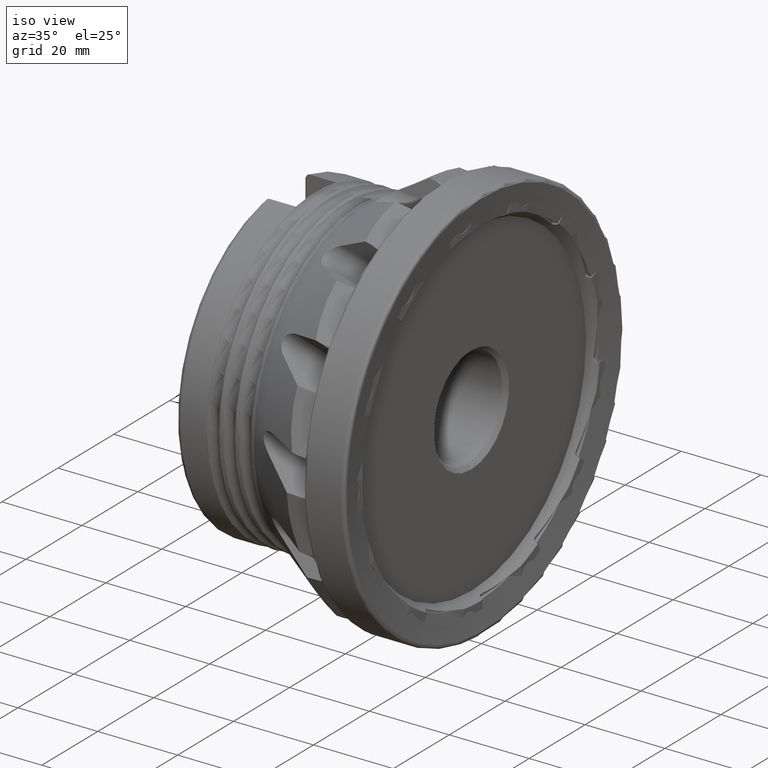
[diagram: clean part render]
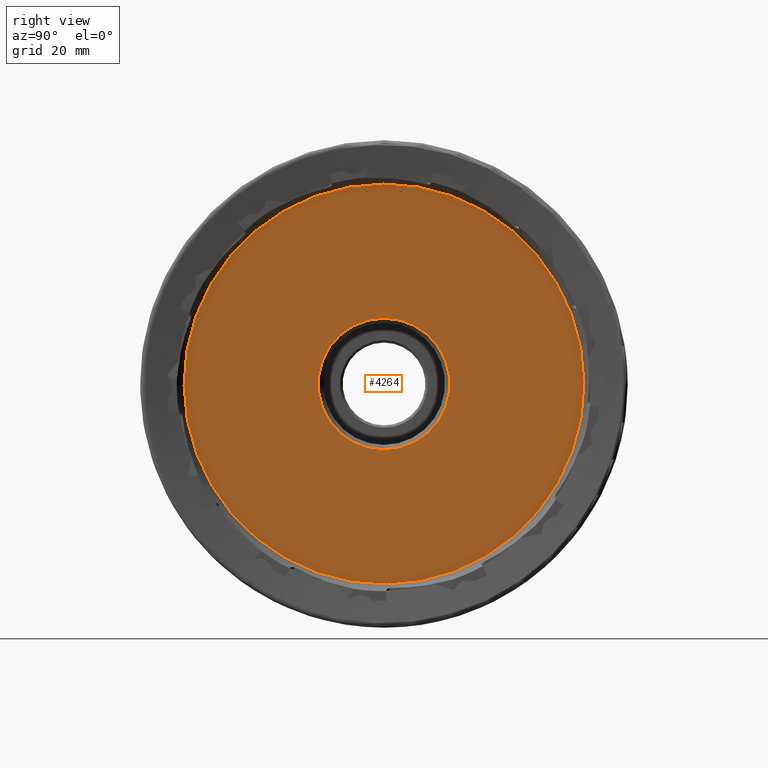
[diagram: tour spotlight — one face highlighted and labeled with its STEP entity id]
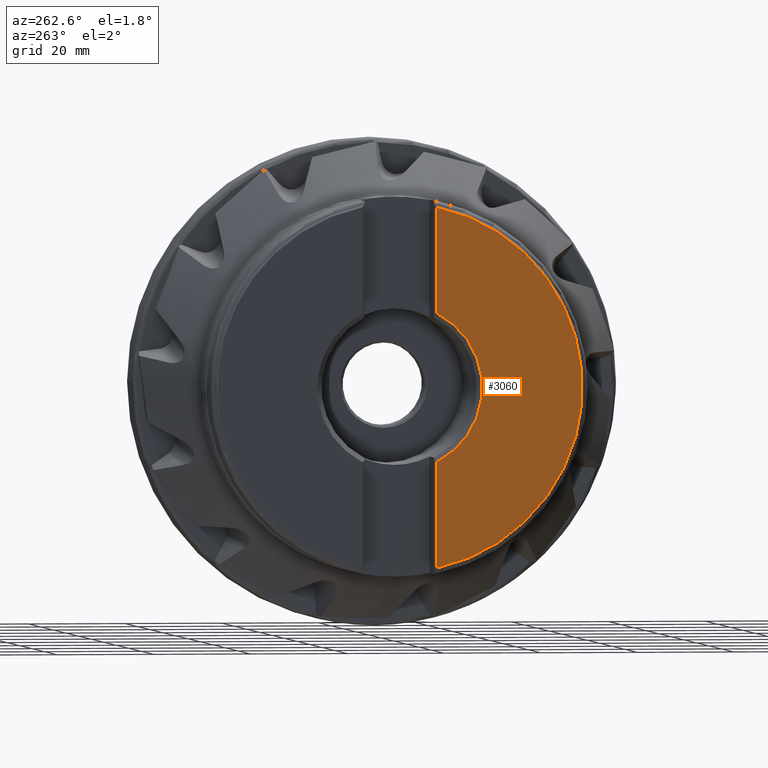
[diagram: tour spotlight — one face highlighted and labeled with its STEP entity id]
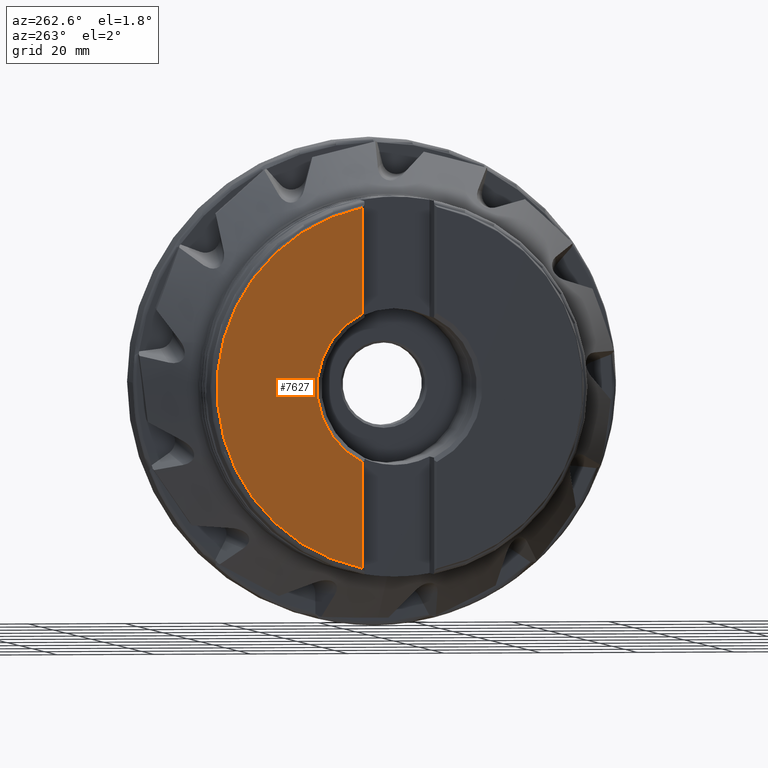
[diagram: tour spotlight — one face highlighted and labeled with its STEP entity id]
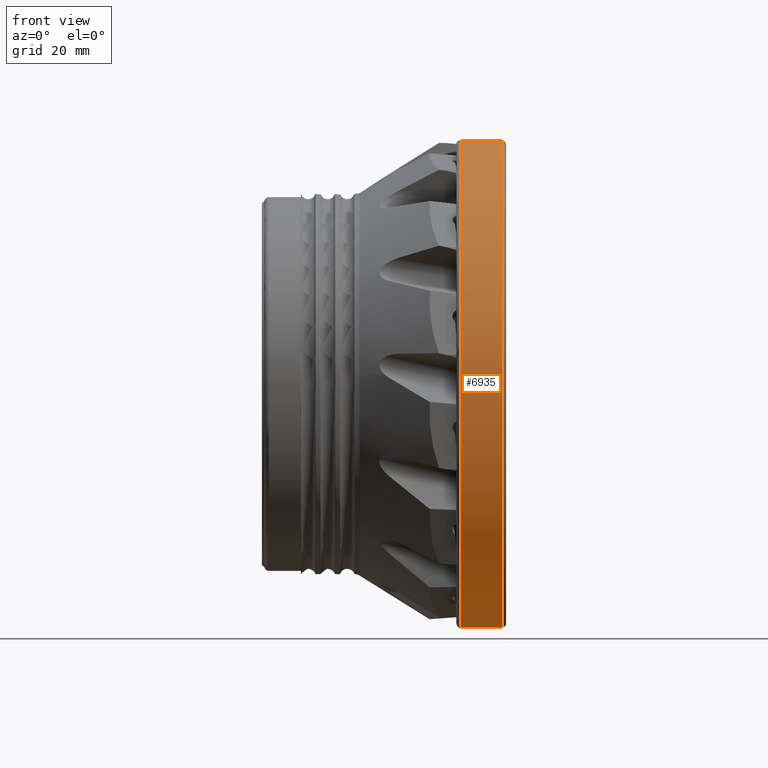
[diagram: tour spotlight — one face highlighted and labeled with its STEP entity id]
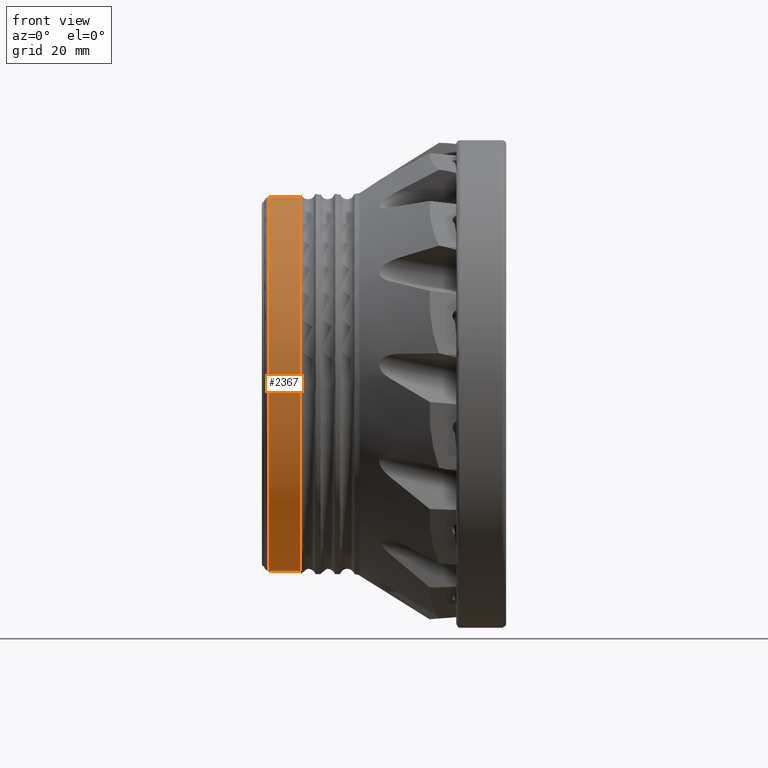
[diagram: tour spotlight — one face highlighted and labeled with its STEP entity id]
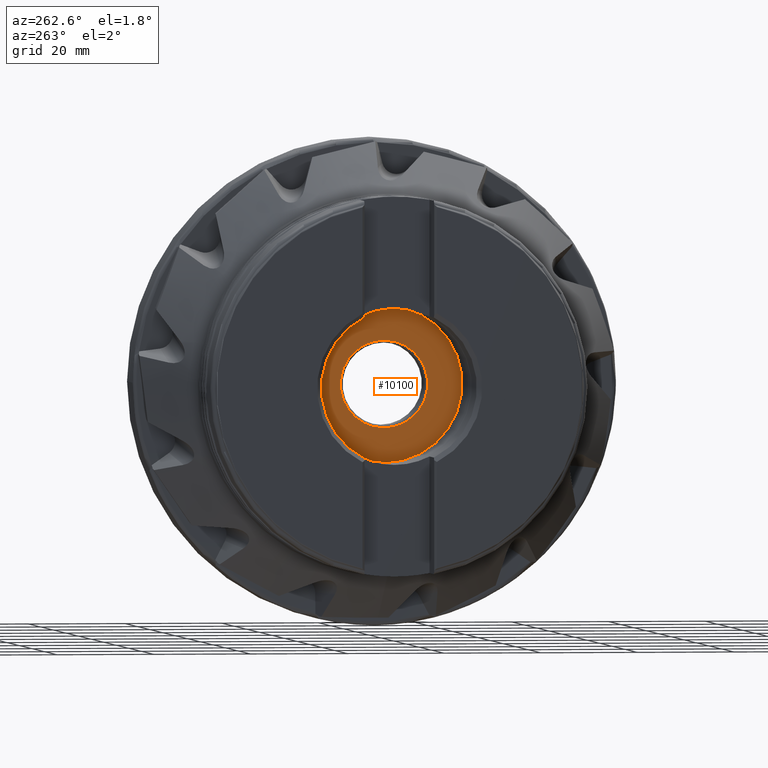
[diagram: tour spotlight — one face highlighted and labeled with its STEP entity id]
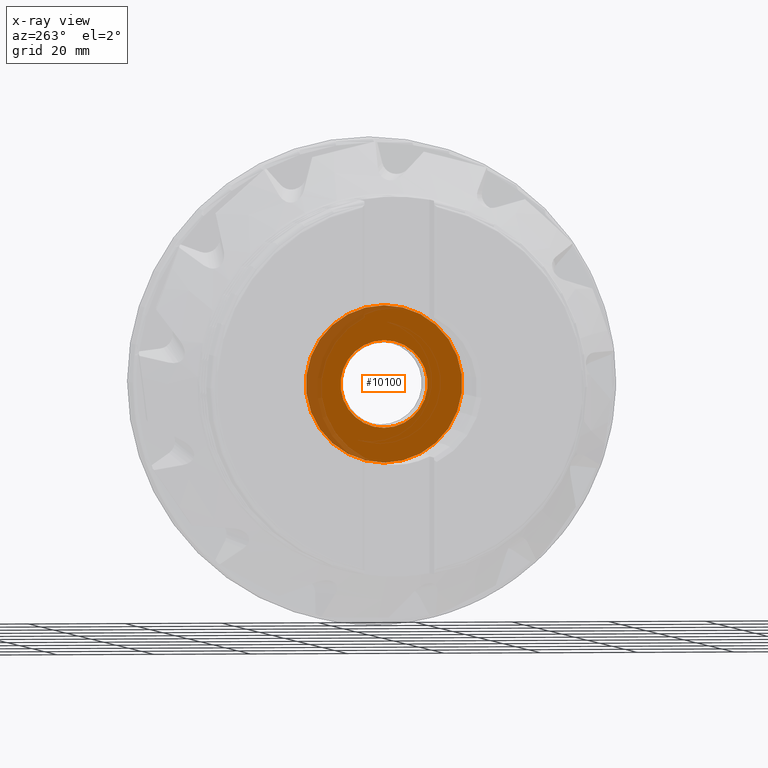
[diagram: x-ray of the same camera — body ghosted, this tour face saturated]
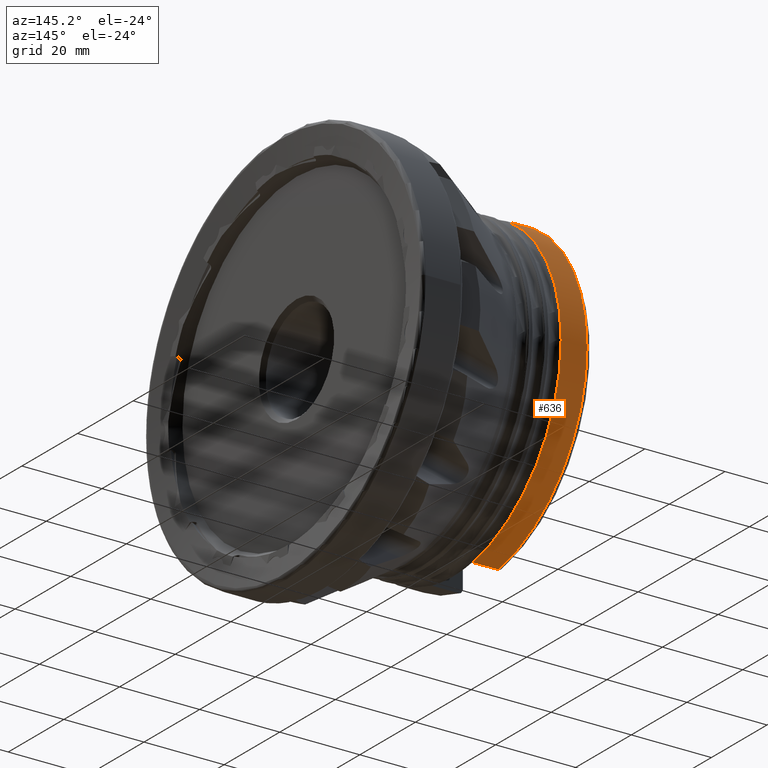
[diagram: tour spotlight — one face highlighted and labeled with its STEP entity id]
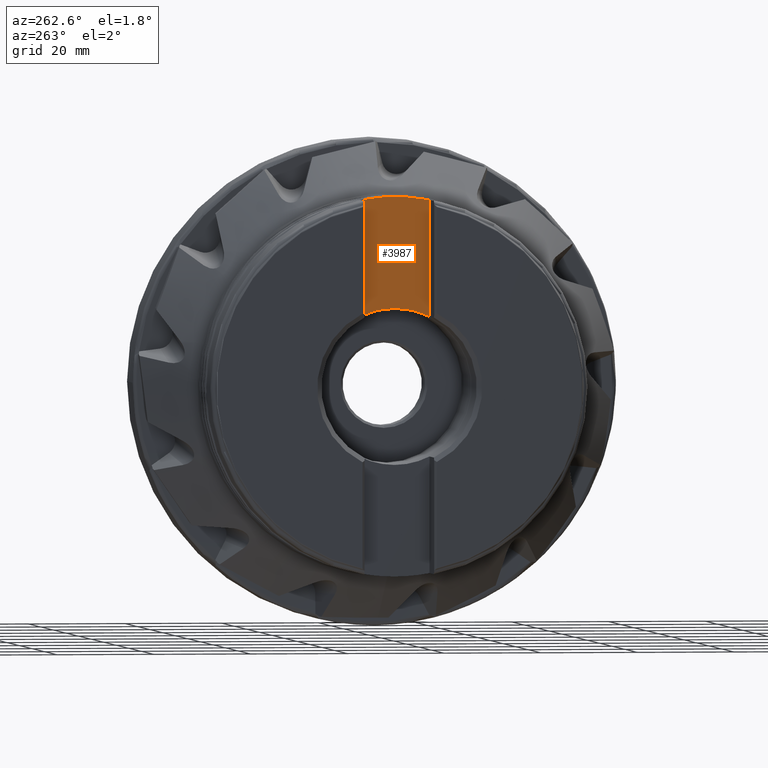
[diagram: tour spotlight — one face highlighted and labeled with its STEP entity id]
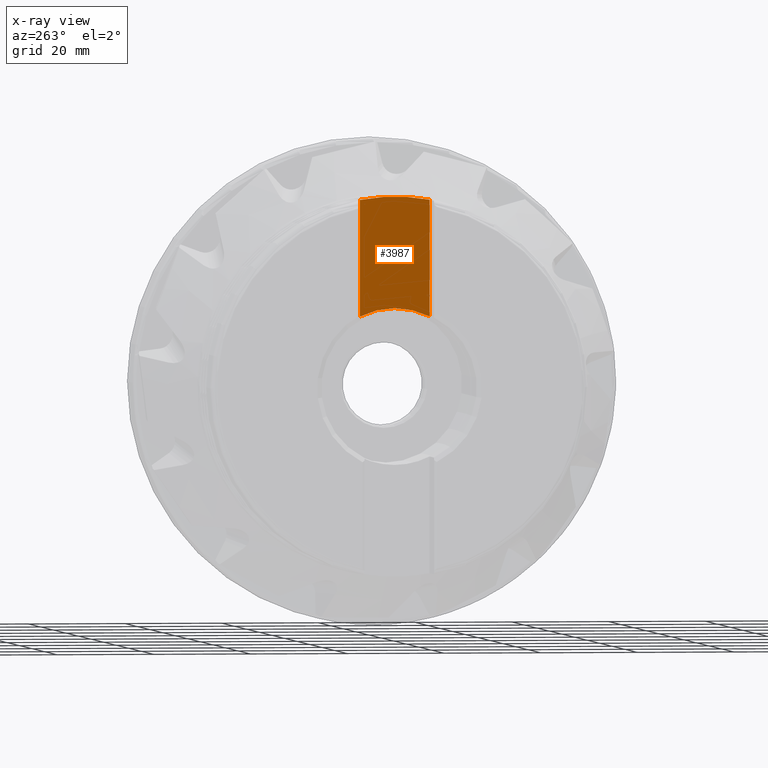
[diagram: x-ray of the same camera — body ghosted, this tour face saturated]
A machine part: a face-by-face anatomy tour. The part has 326 B-rep faces; the first image is the clean iso view, then the 8 largest visible faces are spotlighted one at a time (largest first), each with its STEP entity span.

Face 1 — right view, entity #4264. In plain terms, the highlighted planar face has unit normal (1, 0, 0).
Definition (entity closure, byte-faithful):
#542 = DIRECTION ( 'NONE',  ( 0.0000000000000000000, 0.0000000000000000000, 1.000000000000000000 ) ) ;
#585 = CARTESIAN_POINT ( 'NONE',  ( -2.500000000000001300, 0.0000000000000000000, 0.0000000000000000000 ) ) ;
#660 = EDGE_CURVE ( 'NONE', #1336, #1336, #10934, .T. ) ;
#815 = DIRECTION ( 'NONE',  ( 1.000000000000000000, 0.0000000000000000000, 0.0000000000000000000 ) ) ;
#831 = EDGE_CURVE ( 'NONE', #1180, #1180, #4416, .T. ) ;
#1180 = VERTEX_POINT ( 'NONE', #9191 ) ;
#1332 = EDGE_LOOP ( 'NONE', ( #6541 ) ) ;
#1336 = VERTEX_POINT ( 'NONE', #4300 ) ;
#2149 = AXIS2_PLACEMENT_3D ( 'NONE', #2802, #815, #7789 ) ;
#2802 = CARTESIAN_POINT ( 'NONE',  ( -2.500000000000000000, 41.00000000000000000, 0.0000000000000000000 ) ) ;
#2975 = CARTESIAN_POINT ( 'NONE',  ( -2.500000000000000000, 0.0000000000000000000, 0.0000000000000000000 ) ) ;
#3393 = DIRECTION ( 'NONE',  ( -1.000000000000000000, -0.0000000000000000000, -0.0000000000000000000 ) ) ;
#3403 = DIRECTION ( 'NONE',  ( -1.000000000000000000, -0.0000000000000000000, -0.0000000000000000000 ) ) ;
#4109 = AXIS2_PLACEMENT_3D ( 'NONE', #2975, #3393, #10331 ) ;
#4264 = ADVANCED_FACE ( 'NONE', ( #12310, #5672 ), #6784, .T. ) ;
#4300 = CARTESIAN_POINT ( 'NONE',  ( -2.500000000000000000, 0.0000000000000000000, -13.50000000000001200 ) ) ;
#4416 = CIRCLE ( 'NONE', #12720, 41.00000000000000000 ) ;
#5672 = FACE_OUTER_BOUND ( 'NONE', #1332, .T. ) ;
#6541 = ORIENTED_EDGE ( 'NONE', *, *, #831, .F. ) ;
#6784 = PLANE ( 'NONE',  #2149 ) ;
#6918 = EDGE_LOOP ( 'NONE', ( #10402 ) ) ;
#7789 = DIRECTION ( 'NONE',  ( 0.0000000000000000000, 0.0000000000000000000, -1.000000000000000000 ) ) ;
#9191 = CARTESIAN_POINT ( 'NONE',  ( -2.500000000000001300, 0.0000000000000000000, 41.00000000000000000 ) ) ;
#10331 = DIRECTION ( 'NONE',  ( 0.0000000000000000000, 0.0000000000000000000, -1.000000000000000000 ) ) ;
#10402 = ORIENTED_EDGE ( 'NONE', *, *, #660, .T. ) ;
#10934 = CIRCLE ( 'NONE', #4109, 13.50000000000001200 ) ;
#12310 = FACE_BOUND ( 'NONE', #6918, .T. ) ;
#12720 = AXIS2_PLACEMENT_3D ( 'NONE', #585, #3403, #542 ) ;

Face 2 — auxiliary view, entity #3060. In plain terms, the highlighted planar face has unit normal (-1, 0, 0).
Definition (entity closure, byte-faithful):
#133 = VECTOR ( 'NONE', #1346, 1000.000000000000000 ) ;
#612 = PLANE ( 'NONE',  #1939 ) ;
#1264 = LINE ( 'NONE', #7281, #133 ) ;
#1346 = DIRECTION ( 'NONE',  ( 0.0000000000000000000, 0.0000000000000000000, -1.000000000000000000 ) ) ;
#1559 = VERTEX_POINT ( 'NONE', #11667 ) ;
#1629 = DIRECTION ( 'NONE',  ( 0.0000000000000000000, 0.0000000000000000000, 1.000000000000000000 ) ) ;
#1939 = AXIS2_PLACEMENT_3D ( 'NONE', #10497, #7581, #1629 ) ;
#2258 = ORIENTED_EDGE ( 'NONE', *, *, #2793, .T. ) ;
#2632 = EDGE_CURVE ( 'NONE', #5639, #4954, #3276, .T. ) ;
#2793 = EDGE_CURVE ( 'NONE', #5639, #1559, #1264, .T. ) ;
#3060 = ADVANCED_FACE ( 'NONE', ( #3924 ), #612, .T. ) ;
#3276 = CIRCLE ( 'NONE', #12005, 37.78999999999999900 ) ;
#3304 = AXIS2_PLACEMENT_3D ( 'NONE', #5183, #12106, #6183 ) ;
#3594 = ORIENTED_EDGE ( 'NONE', *, *, #2632, .F. ) ;
#3924 = FACE_OUTER_BOUND ( 'NONE', #12056, .T. ) ;
#4088 = VERTEX_POINT ( 'NONE', #10211 ) ;
#4954 = VERTEX_POINT ( 'NONE', #8383 ) ;
#5183 = CARTESIAN_POINT ( 'NONE',  ( -49.39999999999999900, 0.0000000000000000000, 0.0000000000000000000 ) ) ;
#5639 = VERTEX_POINT ( 'NONE', #8208 ) ;
#5865 = CARTESIAN_POINT ( 'NONE',  ( -49.39999999999999100, -5.484501741648274700E-015, 0.0000000000000000000 ) ) ;
#6183 = DIRECTION ( 'NONE',  ( 0.0000000000000000000, 0.0000000000000000000, 1.000000000000000000 ) ) ;
#6500 = DIRECTION ( 'NONE',  ( 0.0000000000000000000, 0.0000000000000000000, -1.000000000000000000 ) ) ;
#6854 = DIRECTION ( 'NONE',  ( -1.836171977747348100E-016, 1.000000000000000000, 0.0000000000000000000 ) ) ;
#7281 = CARTESIAN_POINT ( 'NONE',  ( -49.39999999999999900, -7.699999999999991300, 15.48275250076675600 ) ) ;
#7581 = DIRECTION ( 'NONE',  ( -1.000000000000000000, 0.0000000000000000000, 0.0000000000000000000 ) ) ;
#7730 = CIRCLE ( 'NONE', #3304, 17.07499999999997800 ) ;
#8208 = CARTESIAN_POINT ( 'NONE',  ( -49.39999999999999100, -7.699999999999991300, 36.99721746293902000 ) ) ;
#8383 = CARTESIAN_POINT ( 'NONE',  ( -49.39999999999999100, -7.699999999999985100, -36.99721746293902700 ) ) ;
#8410 = ORIENTED_EDGE ( 'NONE', *, *, #8964, .T. ) ;
#8451 = CARTESIAN_POINT ( 'NONE',  ( -49.39999999999999900, -7.699999999999991300, -37.09776408356708500 ) ) ;
#8964 = EDGE_CURVE ( 'NONE', #4088, #4954, #11886, .T. ) ;
#10211 = CARTESIAN_POINT ( 'NONE',  ( -49.39999999999999900, -7.699999999999991300, -15.24026328512730700 ) ) ;
#10497 = CARTESIAN_POINT ( 'NONE',  ( -49.39999999999999900, 38.99999999999999300, 0.0000000000000000000 ) ) ;
#10596 = ORIENTED_EDGE ( 'NONE', *, *, #10821, .T. ) ;
#10821 = EDGE_CURVE ( 'NONE', #1559, #4088, #7730, .T. ) ;
#11667 = CARTESIAN_POINT ( 'NONE',  ( -49.39999999999999900, -7.699999999999991300, 15.24026328512730700 ) ) ;
#11886 = LINE ( 'NONE', #8451, #12017 ) ;
#12005 = AXIS2_PLACEMENT_3D ( 'NONE', #5865, #12763, #6854 ) ;
#12017 = VECTOR ( 'NONE', #6500, 1000.000000000000000 ) ;
#12056 = EDGE_LOOP ( 'NONE', ( #10596, #8410, #3594, #2258 ) ) ;
#12106 = DIRECTION ( 'NONE',  ( 1.000000000000000000, -0.0000000000000000000, -0.0000000000000000000 ) ) ;
#12763 = DIRECTION ( 'NONE',  ( 1.000000000000000000, 1.110223024625157000E-016, -0.0000000000000000000 ) ) ;

Face 3 — auxiliary view, entity #7627. In plain terms, the highlighted planar face has unit normal (-1, 0, 0).
Definition (entity closure, byte-faithful):
#422 = AXIS2_PLACEMENT_3D ( 'NONE', #8832, #2912, #9842 ) ;
#476 = CIRCLE ( 'NONE', #422, 37.78999999999999900 ) ;
#869 = VECTOR ( 'NONE', #6298, 1000.000000000000000 ) ;
#1042 = CARTESIAN_POINT ( 'NONE',  ( -49.39999999999999100, 7.699999999999998400, -36.99721746293902000 ) ) ;
#1145 = CARTESIAN_POINT ( 'NONE',  ( -49.39999999999999100, 7.699999999999992200, 36.99721746293902000 ) ) ;
#1168 = EDGE_CURVE ( 'NONE', #3958, #11367, #4794, .T. ) ;
#1698 = AXIS2_PLACEMENT_3D ( 'NONE', #4059, #5076, #11995 ) ;
#1958 = PLANE ( 'NONE',  #1698 ) ;
#2395 = ORIENTED_EDGE ( 'NONE', *, *, #2657, .F. ) ;
#2498 = CARTESIAN_POINT ( 'NONE',  ( -49.39999999999999900, 7.699999999999998400, 37.09776408356702900 ) ) ;
#2657 = EDGE_CURVE ( 'NONE', #3958, #6763, #476, .T. ) ;
#2682 = CARTESIAN_POINT ( 'NONE',  ( -49.39999999999999900, 7.699999999999997500, -15.24026328512730400 ) ) ;
#2841 = ORIENTED_EDGE ( 'NONE', *, *, #9625, .T. ) ;
#2912 = DIRECTION ( 'NONE',  ( 1.000000000000000000, 1.110223024625157000E-016, -0.0000000000000000000 ) ) ;
#3154 = ORIENTED_EDGE ( 'NONE', *, *, #1168, .T. ) ;
#3958 = VERTEX_POINT ( 'NONE', #1042 ) ;
#3976 = VERTEX_POINT ( 'NONE', #10997 ) ;
#4059 = CARTESIAN_POINT ( 'NONE',  ( -49.39999999999999900, 38.99999999999999300, 0.0000000000000000000 ) ) ;
#4794 = LINE ( 'NONE', #7241, #869 ) ;
#5076 = DIRECTION ( 'NONE',  ( -1.000000000000000000, 0.0000000000000000000, 0.0000000000000000000 ) ) ;
#5567 = VECTOR ( 'NONE', #11460, 1000.000000000000000 ) ;
#5663 = CARTESIAN_POINT ( 'NONE',  ( -49.39999999999999900, 0.0000000000000000000, 0.0000000000000000000 ) ) ;
#5866 = LINE ( 'NONE', #2498, #5567 ) ;
#6298 = DIRECTION ( 'NONE',  ( 0.0000000000000000000, -0.0000000000000000000, 1.000000000000000000 ) ) ;
#6651 = DIRECTION ( 'NONE',  ( 0.0000000000000000000, 8.881784197001252300E-016, 1.000000000000000000 ) ) ;
#6763 = VERTEX_POINT ( 'NONE', #1145 ) ;
#7241 = CARTESIAN_POINT ( 'NONE',  ( -49.39999999999999900, 7.699999999999998400, -15.48275250076675900 ) ) ;
#7627 = ADVANCED_FACE ( 'NONE', ( #10324 ), #1958, .T. ) ;
#8545 = CIRCLE ( 'NONE', #10702, 17.07499999999997800 ) ;
#8832 = CARTESIAN_POINT ( 'NONE',  ( -49.39999999999999100, -5.484501741648274700E-015, 0.0000000000000000000 ) ) ;
#8923 = EDGE_LOOP ( 'NONE', ( #11879, #2841, #2395, #3154 ) ) ;
#9625 = EDGE_CURVE ( 'NONE', #3976, #6763, #5866, .T. ) ;
#9842 = DIRECTION ( 'NONE',  ( -1.836171977747348100E-016, 1.000000000000000000, 0.0000000000000000000 ) ) ;
#10111 = EDGE_CURVE ( 'NONE', #11367, #3976, #8545, .T. ) ;
#10324 = FACE_OUTER_BOUND ( 'NONE', #8923, .T. ) ;
#10702 = AXIS2_PLACEMENT_3D ( 'NONE', #5663, #12569, #6651 ) ;
#10997 = CARTESIAN_POINT ( 'NONE',  ( -49.39999999999999900, 7.699999999999998400, 15.24026328512730400 ) ) ;
#11367 = VERTEX_POINT ( 'NONE', #2682 ) ;
#11460 = DIRECTION ( 'NONE',  ( 0.0000000000000000000, -0.0000000000000000000, 1.000000000000000000 ) ) ;
#11879 = ORIENTED_EDGE ( 'NONE', *, *, #10111, .T. ) ;
#11995 = DIRECTION ( 'NONE',  ( 0.0000000000000000000, 0.0000000000000000000, 1.000000000000000000 ) ) ;
#12569 = DIRECTION ( 'NONE',  ( 1.000000000000000000, -0.0000000000000000000, -0.0000000000000000000 ) ) ;

Face 4 — front view, entity #6935. In plain terms, the highlighted cylindrical surface (bore or boss wall) has radius 49.9892 mm, axis along (1, 0, -0).
Definition (entity closure, byte-faithful):
#988 = DIRECTION ( 'NONE',  ( 1.000000000000000000, 1.224983210366505700E-016, -0.0000000000000000000 ) ) ;
#1460 = DIRECTION ( 'NONE',  ( 1.000000000000000000, 1.224983210366505700E-016, -0.0000000000000000000 ) ) ;
#2377 = EDGE_LOOP ( 'NONE', ( #5916 ) ) ;
#2702 = FACE_OUTER_BOUND ( 'NONE', #2377, .T. ) ;
#2903 = AXIS2_PLACEMENT_3D ( 'NONE', #11191, #5254, #12175 ) ;
#3322 = FACE_OUTER_BOUND ( 'NONE', #10427, .T. ) ;
#3465 = CARTESIAN_POINT ( 'NONE',  ( 8.934479604272297600, 0.0000000000000000000, 0.0000000000000000000 ) ) ;
#3514 = DIRECTION ( 'NONE',  ( -1.388077365439003300E-016, 1.000000000000000000, 0.0000000000000000000 ) ) ;
#3536 = VERTEX_POINT ( 'NONE', #12555 ) ;
#4072 = ORIENTED_EDGE ( 'NONE', *, *, #12387, .F. ) ;
#4576 = AXIS2_PLACEMENT_3D ( 'NONE', #6953, #988, #7952 ) ;
#5254 = DIRECTION ( 'NONE',  ( 1.000000000000000000, 1.224983210366505700E-016, -0.0000000000000000000 ) ) ;
#5916 = ORIENTED_EDGE ( 'NONE', *, *, #9886, .T. ) ;
#6935 = ADVANCED_FACE ( 'NONE', ( #3322, #2702 ), #12011, .T. ) ;
#6953 = CARTESIAN_POINT ( 'NONE',  ( -8.729854214491627600, -2.163851235029507000E-015, 0.0000000000000000000 ) ) ;
#7286 = CIRCLE ( 'NONE', #4576, 49.98924466802096600 ) ;
#7952 = DIRECTION ( 'NONE',  ( -1.388077365439003300E-016, 1.000000000000000000, 0.0000000000000000000 ) ) ;
#8739 = AXIS2_PLACEMENT_3D ( 'NONE', #3465, #1460, #3514 ) ;
#9670 = CARTESIAN_POINT ( 'NONE',  ( -0.1249407386134304800, 49.98924466802096600, 0.0000000000000000000 ) ) ;
#9886 = EDGE_CURVE ( 'NONE', #3536, #3536, #7286, .T. ) ;
#10154 = CIRCLE ( 'NONE', #2903, 49.98924466802096600 ) ;
#10427 = EDGE_LOOP ( 'NONE', ( #4072 ) ) ;
#11191 = CARTESIAN_POINT ( 'NONE',  ( -0.1249407386134243600, -1.109763781568778100E-015, 0.0000000000000000000 ) ) ;
#12011 = CYLINDRICAL_SURFACE ( 'NONE', #8739, 49.98924466802096600 ) ;
#12175 = DIRECTION ( 'NONE',  ( -1.225412049176620000E-016, 1.000000000000000000, 0.0000000000000000000 ) ) ;
#12387 = EDGE_CURVE ( 'NONE', #12485, #12485, #10154, .T. ) ;
#12485 = VERTEX_POINT ( 'NONE', #9670 ) ;
#12555 = CARTESIAN_POINT ( 'NONE',  ( -8.729854214491634700, 49.98924466802096600, 0.0000000000000000000 ) ) ;

Face 5 — front view, entity #2367. In plain terms, the highlighted cylindrical surface (partial cylindrical patch) has radius 39 mm, axis along (1, -0, -0).
Definition (entity closure, byte-faithful):
#562 = CYLINDRICAL_SURFACE ( 'NONE', #1370, 38.99999999999999300 ) ;
#599 = ORIENTED_EDGE ( 'NONE', *, *, #8457, .F. ) ;
#1218 = FACE_OUTER_BOUND ( 'NONE', #8944, .T. ) ;
#1282 = DIRECTION ( 'NONE',  ( -1.000000000000000000, -0.0000000000000000000, -0.0000000000000000000 ) ) ;
#1333 = VECTOR ( 'NONE', #7585, 1000.000000000000000 ) ;
#1370 = AXIS2_PLACEMENT_3D ( 'NONE', #7429, #6447, #8391 ) ;
#1454 = CARTESIAN_POINT ( 'NONE',  ( 8.511868235461817200E-016, -7.200000000000000200, 38.32962300884264600 ) ) ;
#1517 = CARTESIAN_POINT ( 'NONE',  ( -47.96233724523590100, -6.942354316154858900E-015, 0.0000000000000000000 ) ) ;
#2367 = ADVANCED_FACE ( 'NONE', ( #1218 ), #562, .T. ) ;
#2465 = DIRECTION ( 'NONE',  ( 1.000000000000000000, -0.0000000000000000000, -0.0000000000000000000 ) ) ;
#2518 = DIRECTION ( 'NONE',  ( -1.779203565104417900E-016, 1.000000000000000000, 0.0000000000000000000 ) ) ;
#4110 = CARTESIAN_POINT ( 'NONE',  ( -41.49059737205869400, -7.200000000000004600, -38.32962300884264600 ) ) ;
#4491 = AXIS2_PLACEMENT_3D ( 'NONE', #1517, #8465, #2518 ) ;
#4530 = ORIENTED_EDGE ( 'NONE', *, *, #12060, .F. ) ;
#4719 = LINE ( 'NONE', #6595, #1333 ) ;
#5168 = CARTESIAN_POINT ( 'NONE',  ( -47.96233724523590800, -7.200000000000000200, -38.32962300884264600 ) ) ;
#6447 = DIRECTION ( 'NONE',  ( 1.000000000000000000, -0.0000000000000000000, -0.0000000000000000000 ) ) ;
#6595 = CARTESIAN_POINT ( 'NONE',  ( 8.511868235461817200E-016, -7.200000000000000200, -38.32962300884264600 ) ) ;
#7223 = CARTESIAN_POINT ( 'NONE',  ( -41.49059737205869400, 0.0000000000000000000, 0.0000000000000000000 ) ) ;
#7429 = CARTESIAN_POINT ( 'NONE',  ( 0.0000000000000000000, 0.0000000000000000000, 0.0000000000000000000 ) ) ;
#7478 = ORIENTED_EDGE ( 'NONE', *, *, #12540, .F. ) ;
#7535 = VECTOR ( 'NONE', #2465, 1000.000000000000000 ) ;
#7565 = LINE ( 'NONE', #1454, #7535 ) ;
#7585 = DIRECTION ( 'NONE',  ( -1.000000000000000000, 0.0000000000000000000, 0.0000000000000000000 ) ) ;
#7711 = ORIENTED_EDGE ( 'NONE', *, *, #12389, .T. ) ;
#7939 = CARTESIAN_POINT ( 'NONE',  ( -41.49059737205869400, -7.200000000000004600, 38.32962300884264600 ) ) ;
#8217 = AXIS2_PLACEMENT_3D ( 'NONE', #7223, #1282, #8226 ) ;
#8226 = DIRECTION ( 'NONE',  ( 0.0000000000000000000, 0.0000000000000000000, -1.000000000000000000 ) ) ;
#8391 = DIRECTION ( 'NONE',  ( 0.0000000000000000000, 0.0000000000000000000, -1.000000000000000000 ) ) ;
#8457 = EDGE_CURVE ( 'NONE', #12360, #11240, #4719, .T. ) ;
#8464 = CIRCLE ( 'NONE', #8217, 38.99999999999999300 ) ;
#8465 = DIRECTION ( 'NONE',  ( -1.000000000000000000, -1.110223024625157000E-016, 0.0000000000000000000 ) ) ;
#8672 = CARTESIAN_POINT ( 'NONE',  ( -47.96233724523590800, -7.200000000000000200, 38.32962300884264600 ) ) ;
#8944 = EDGE_LOOP ( 'NONE', ( #599, #7711, #7478, #4530 ) ) ;
#9580 = CIRCLE ( 'NONE', #4491, 38.99999999999999300 ) ;
#10144 = VERTEX_POINT ( 'NONE', #8672 ) ;
#11240 = VERTEX_POINT ( 'NONE', #5168 ) ;
#11823 = VERTEX_POINT ( 'NONE', #7939 ) ;
#12060 = EDGE_CURVE ( 'NONE', #11240, #10144, #9580, .T. ) ;
#12360 = VERTEX_POINT ( 'NONE', #4110 ) ;
#12389 = EDGE_CURVE ( 'NONE', #12360, #11823, #8464, .T. ) ;
#12540 = EDGE_CURVE ( 'NONE', #10144, #11823, #7565, .T. ) ;

Face 6 — auxiliary view, entity #10100. An x-ray twin of the same camera follows (body ghosted, this face saturated) — the face is partly hidden behind the body. In plain terms, the highlighted planar face has unit normal (1, 0, -0).
Definition (entity closure, byte-faithful):
#441 = FACE_OUTER_BOUND ( 'NONE', #3733, .T. ) ;
#517 = AXIS2_PLACEMENT_3D ( 'NONE', #4287, #11233, #5285 ) ;
#754 = FACE_BOUND ( 'NONE', #1269, .T. ) ;
#1269 = EDGE_LOOP ( 'NONE', ( #3578 ) ) ;
#1554 = CARTESIAN_POINT ( 'NONE',  ( -24.39999999999999900, 0.0000000000000000000, -8.999999999999980500 ) ) ;
#2616 = CARTESIAN_POINT ( 'NONE',  ( -24.39999999999999900, 8.499999999999996400, 0.0000000000000000000 ) ) ;
#2658 = DIRECTION ( 'NONE',  ( -0.0000000000000000000, 0.0000000000000000000, -1.000000000000000000 ) ) ;
#2817 = CIRCLE ( 'NONE', #517, 16.14999999999999500 ) ;
#3508 = CIRCLE ( 'NONE', #7820, 8.999999999999980500 ) ;
#3578 = ORIENTED_EDGE ( 'NONE', *, *, #5260, .T. ) ;
#3733 = EDGE_LOOP ( 'NONE', ( #10495 ) ) ;
#4077 = EDGE_CURVE ( 'NONE', #12648, #12648, #2817, .T. ) ;
#4287 = CARTESIAN_POINT ( 'NONE',  ( -24.39999999999999900, 0.0000000000000000000, 0.0000000000000000000 ) ) ;
#4522 = CARTESIAN_POINT ( 'NONE',  ( -24.39999999999999900, 0.0000000000000000000, -16.14999999999999500 ) ) ;
#4627 = PLANE ( 'NONE',  #11381 ) ;
#5087 = CARTESIAN_POINT ( 'NONE',  ( -24.39999999999999900, 0.0000000000000000000, 0.0000000000000000000 ) ) ;
#5260 = EDGE_CURVE ( 'NONE', #11136, #11136, #3508, .T. ) ;
#5285 = DIRECTION ( 'NONE',  ( 0.0000000000000000000, 0.0000000000000000000, -1.000000000000000000 ) ) ;
#6075 = DIRECTION ( 'NONE',  ( 0.0000000000000000000, 0.0000000000000000000, -1.000000000000000000 ) ) ;
#7820 = AXIS2_PLACEMENT_3D ( 'NONE', #5087, #12001, #6075 ) ;
#8608 = DIRECTION ( 'NONE',  ( 1.000000000000000000, 0.0000000000000000000, -0.0000000000000000000 ) ) ;
#10100 = ADVANCED_FACE ( 'NONE', ( #754, #441 ), #4627, .F. ) ;
#10495 = ORIENTED_EDGE ( 'NONE', *, *, #4077, .F. ) ;
#11136 = VERTEX_POINT ( 'NONE', #1554 ) ;
#11233 = DIRECTION ( 'NONE',  ( 1.000000000000000000, -0.0000000000000000000, -0.0000000000000000000 ) ) ;
#11381 = AXIS2_PLACEMENT_3D ( 'NONE', #2616, #8608, #2658 ) ;
#12001 = DIRECTION ( 'NONE',  ( 1.000000000000000000, -0.0000000000000000000, -0.0000000000000000000 ) ) ;
#12648 = VERTEX_POINT ( 'NONE', #4522 ) ;

Face 7 — auxiliary view, entity #636. In plain terms, the highlighted cylindrical surface (partial cylindrical patch) has radius 39 mm, axis along (1, -0, -0).
Definition (entity closure, byte-faithful):
#636 = ADVANCED_FACE ( 'NONE', ( #10647 ), #1475, .T. ) ;
#1475 = CYLINDRICAL_SURFACE ( 'NONE', #4787, 38.99999999999999300 ) ;
#1586 = EDGE_CURVE ( 'NONE', #5783, #3540, #5857, .T. ) ;
#3160 = CIRCLE ( 'NONE', #5501, 38.99999999999999300 ) ;
#3181 = CARTESIAN_POINT ( 'NONE',  ( -41.49059737205869400, 7.199999999999994800, -38.32962300884264600 ) ) ;
#3540 = VERTEX_POINT ( 'NONE', #5589 ) ;
#4062 = ORIENTED_EDGE ( 'NONE', *, *, #4396, .T. ) ;
#4396 = EDGE_CURVE ( 'NONE', #5783, #8067, #3160, .T. ) ;
#4470 = CARTESIAN_POINT ( 'NONE',  ( -47.96233724523590100, -6.942354316154858900E-015, 0.0000000000000000000 ) ) ;
#4602 = ORIENTED_EDGE ( 'NONE', *, *, #5878, .F. ) ;
#4675 = DIRECTION ( 'NONE',  ( -1.000000000000000000, 0.0000000000000000000, 0.0000000000000000000 ) ) ;
#4787 = AXIS2_PLACEMENT_3D ( 'NONE', #7307, #4902, #12748 ) ;
#4823 = DIRECTION ( 'NONE',  ( 1.000000000000000000, -0.0000000000000000000, -0.0000000000000000000 ) ) ;
#4902 = DIRECTION ( 'NONE',  ( 1.000000000000000000, -0.0000000000000000000, -0.0000000000000000000 ) ) ;
#5239 = CIRCLE ( 'NONE', #6430, 38.99999999999999300 ) ;
#5245 = VECTOR ( 'NONE', #4675, 1000.000000000000000 ) ;
#5378 = CARTESIAN_POINT ( 'NONE',  ( -41.49059737205869400, 0.0000000000000000000, 0.0000000000000000000 ) ) ;
#5471 = DIRECTION ( 'NONE',  ( -1.779203565104417900E-016, 1.000000000000000000, 0.0000000000000000000 ) ) ;
#5501 = AXIS2_PLACEMENT_3D ( 'NONE', #5378, #12294, #6361 ) ;
#5589 = CARTESIAN_POINT ( 'NONE',  ( -47.96233724523590800, 7.200000000000000200, 38.32962300884264600 ) ) ;
#5783 = VERTEX_POINT ( 'NONE', #12528 ) ;
#5857 = LINE ( 'NONE', #9697, #5245 ) ;
#5878 = EDGE_CURVE ( 'NONE', #10253, #8067, #10198, .T. ) ;
#6057 = EDGE_CURVE ( 'NONE', #3540, #10253, #5239, .T. ) ;
#6361 = DIRECTION ( 'NONE',  ( 0.0000000000000000000, 0.0000000000000000000, -1.000000000000000000 ) ) ;
#6430 = AXIS2_PLACEMENT_3D ( 'NONE', #4470, #11421, #5471 ) ;
#6692 = ORIENTED_EDGE ( 'NONE', *, *, #1586, .F. ) ;
#7307 = CARTESIAN_POINT ( 'NONE',  ( 0.0000000000000000000, 0.0000000000000000000, 0.0000000000000000000 ) ) ;
#7815 = CARTESIAN_POINT ( 'NONE',  ( -47.96233724523590800, 7.200000000000000200, -38.32962300884264600 ) ) ;
#8067 = VERTEX_POINT ( 'NONE', #3181 ) ;
#9002 = ORIENTED_EDGE ( 'NONE', *, *, #6057, .F. ) ;
#9697 = CARTESIAN_POINT ( 'NONE',  ( -8.511868235461817200E-016, 7.200000000000000200, 38.32962300884264600 ) ) ;
#9871 = VECTOR ( 'NONE', #4823, 1000.000000000000000 ) ;
#10198 = LINE ( 'NONE', #10760, #9871 ) ;
#10253 = VERTEX_POINT ( 'NONE', #7815 ) ;
#10647 = FACE_OUTER_BOUND ( 'NONE', #11893, .T. ) ;
#10760 = CARTESIAN_POINT ( 'NONE',  ( -8.511868235461817200E-016, 7.200000000000000200, -38.32962300884264600 ) ) ;
#11421 = DIRECTION ( 'NONE',  ( -1.000000000000000000, -1.110223024625157000E-016, 0.0000000000000000000 ) ) ;
#11893 = EDGE_LOOP ( 'NONE', ( #6692, #4062, #4602, #9002 ) ) ;
#12294 = DIRECTION ( 'NONE',  ( -1.000000000000000000, -0.0000000000000000000, -0.0000000000000000000 ) ) ;
#12528 = CARTESIAN_POINT ( 'NONE',  ( -41.49059737205869400, 7.199999999999994800, 38.32962300884264600 ) ) ;
#12748 = DIRECTION ( 'NONE',  ( 0.0000000000000000000, 0.0000000000000000000, -1.000000000000000000 ) ) ;

Face 8 — auxiliary view, entity #3987. An x-ray twin of the same camera follows (body ghosted, this face saturated) — the face is partly hidden behind the body. In plain terms, the highlighted planar face has unit normal (1, 0, 0).
Definition (entity closure, byte-faithful):
#74 = DIRECTION ( 'NONE',  ( 0.0000000000000000000, 0.0000000000000000000, -1.000000000000000000 ) ) ;
#266 = ORIENTED_EDGE ( 'NONE', *, *, #3402, .F. ) ;
#787 = AXIS2_PLACEMENT_3D ( 'NONE', #7133, #1185, #8135 ) ;
#913 = CARTESIAN_POINT ( 'NONE',  ( -41.39999999999999900, -7.200000000000004600, 38.30754676225960500 ) ) ;
#1061 = CARTESIAN_POINT ( 'NONE',  ( -41.39999999999999900, 0.0000000000000000000, 0.0000000000000000000 ) ) ;
#1141 = CIRCLE ( 'NONE', #3484, 38.97830343848635000 ) ;
#1185 = DIRECTION ( 'NONE',  ( -1.000000000000000000, -0.0000000000000000000, -0.0000000000000000000 ) ) ;
#1713 = CARTESIAN_POINT ( 'NONE',  ( -41.39999999999999900, 7.199999999999994800, 38.30754676225975400 ) ) ;
#1883 = CARTESIAN_POINT ( 'NONE',  ( -41.39999999999999900, -7.200000000000004600, -40.00000000000000000 ) ) ;
#2061 = DIRECTION ( 'NONE',  ( 0.0000000000000000000, 3.552713678800500900E-015, -1.000000000000000000 ) ) ;
#2236 = DIRECTION ( 'NONE',  ( -0.0000000000000000000, -0.0000000000000000000, 1.000000000000000000 ) ) ;
#2906 = DIRECTION ( 'NONE',  ( -0.0000000000000000000, -0.0000000000000000000, 1.000000000000000000 ) ) ;
#3402 = EDGE_CURVE ( 'NONE', #7766, #3788, #8889, .T. ) ;
#3484 = AXIS2_PLACEMENT_3D ( 'NONE', #1061, #8023, #2061 ) ;
#3788 = VERTEX_POINT ( 'NONE', #1713 ) ;
#3862 = VERTEX_POINT ( 'NONE', #913 ) ;
#3987 = ADVANCED_FACE ( 'NONE', ( #4236 ), #7007, .F. ) ;
#4236 = FACE_OUTER_BOUND ( 'NONE', #6976, .T. ) ;
#5073 = CARTESIAN_POINT ( 'NONE',  ( -41.39999999999999900, 7.199999999999994800, -40.00000000000000000 ) ) ;
#5538 = ORIENTED_EDGE ( 'NONE', *, *, #9414, .F. ) ;
#6059 = DIRECTION ( 'NONE',  ( 1.000000000000000000, 0.0000000000000000000, 0.0000000000000000000 ) ) ;
#6364 = CARTESIAN_POINT ( 'NONE',  ( -41.39999999999999900, 7.199999999999994800, 14.37239106759900800 ) ) ;
#6675 = EDGE_CURVE ( 'NONE', #9104, #3862, #10475, .T. ) ;
#6976 = EDGE_LOOP ( 'NONE', ( #8685, #9803, #266, #5538 ) ) ;
#7007 = PLANE ( 'NONE',  #11470 ) ;
#7133 = CARTESIAN_POINT ( 'NONE',  ( -41.39999999999999900, 0.0000000000000000000, 0.0000000000000000000 ) ) ;
#7743 = CARTESIAN_POINT ( 'NONE',  ( -41.39999999999999900, -7.200000000000004600, 14.37239106759900800 ) ) ;
#7766 = VERTEX_POINT ( 'NONE', #6364 ) ;
#8023 = DIRECTION ( 'NONE',  ( -1.000000000000000000, -0.0000000000000000000, -0.0000000000000000000 ) ) ;
#8135 = DIRECTION ( 'NONE',  ( 0.0000000000000000000, 1.776356839400250500E-015, -1.000000000000000000 ) ) ;
#8180 = CARTESIAN_POINT ( 'NONE',  ( -41.39999999999999900, 7.199999999999994800, -40.00000000000000000 ) ) ;
#8685 = ORIENTED_EDGE ( 'NONE', *, *, #6675, .T. ) ;
#8889 = LINE ( 'NONE', #8180, #11225 ) ;
#8898 = VECTOR ( 'NONE', #2906, 1000.000000000000000 ) ;
#9104 = VERTEX_POINT ( 'NONE', #7743 ) ;
#9414 = EDGE_CURVE ( 'NONE', #9104, #7766, #10031, .T. ) ;
#9803 = ORIENTED_EDGE ( 'NONE', *, *, #11166, .T. ) ;
#10031 = CIRCLE ( 'NONE', #787, 16.07499999999999200 ) ;
#10475 = LINE ( 'NONE', #1883, #8898 ) ;
#11166 = EDGE_CURVE ( 'NONE', #3862, #3788, #1141, .T. ) ;
#11225 = VECTOR ( 'NONE', #2236, 1000.000000000000000 ) ;
#11470 = AXIS2_PLACEMENT_3D ( 'NONE', #5073, #6059, #74 ) ;